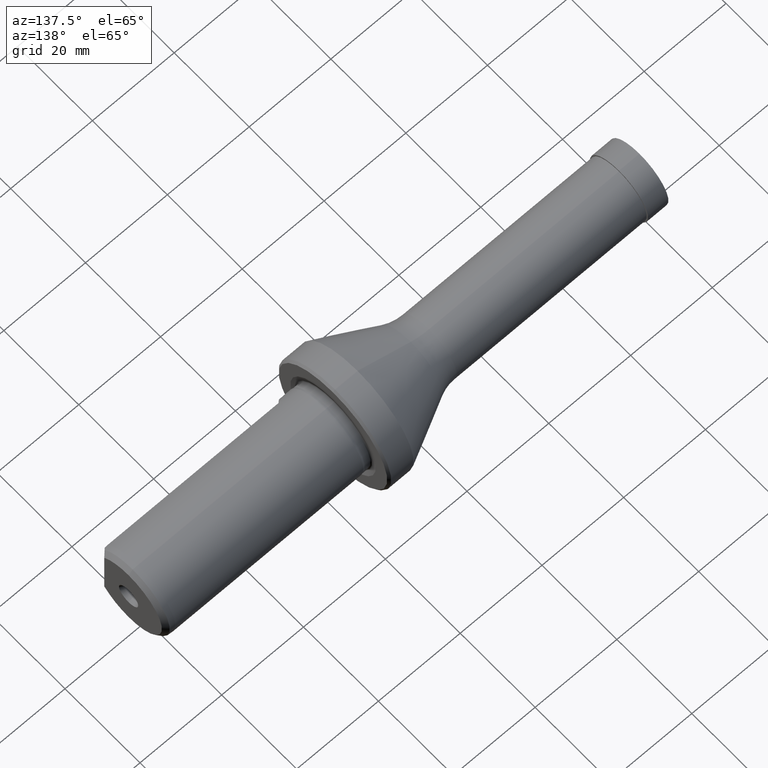
[diagram: clean part render]
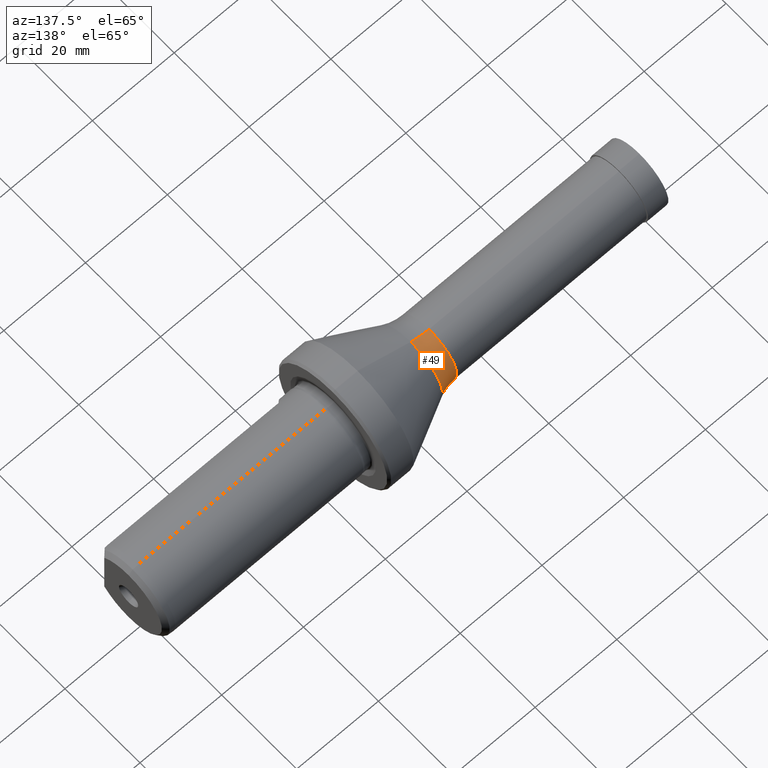
[diagram: same view with one face highlighted and labeled with its STEP entity id]
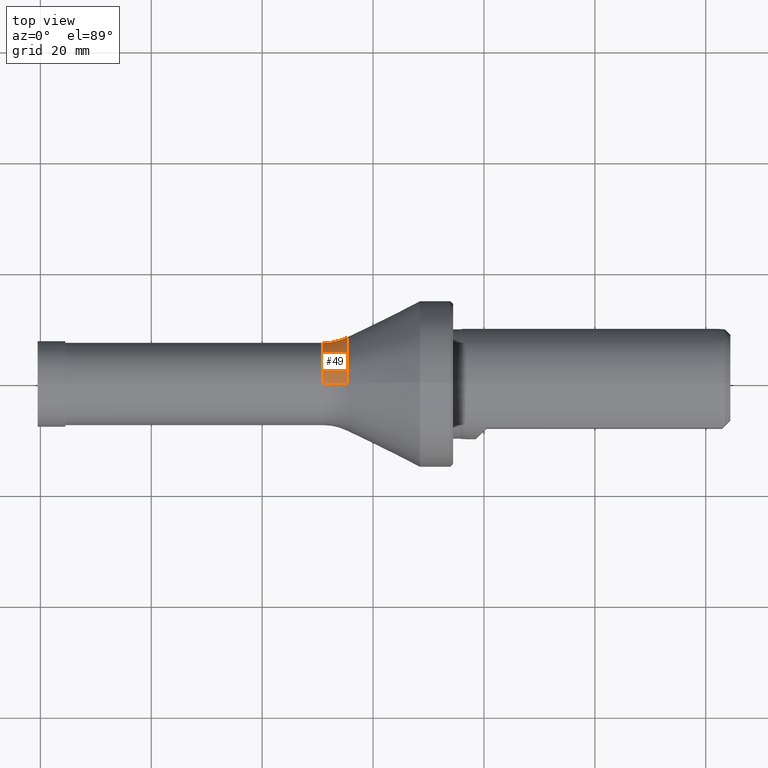
[diagram: same view with one face highlighted and labeled with its STEP entity id]
A machine part, auxiliary view. The second image highlights one B-rep face of the part: STEP entity #49.
A second angle (top view) of the same face is appended — the face is thin or edge-on in the first view.
In plain terms, the highlighted toroidal blend (fillet) surface has major radius 17.45 mm and minor (blend) radius 10 mm.
Its self-contained STEP definition (entity closure, byte-faithful):
#26 = VERTEX_POINT ( 'NONE', #283 ) ;
#47 = VERTEX_POINT ( 'NONE', #472 ) ;
#49 = ADVANCED_FACE ( 'NONE', ( #1224 ), #590, .F. ) ;
#71 = ORIENTED_EDGE ( 'NONE', *, *, #646, .F. ) ;
#106 = ORIENTED_EDGE ( 'NONE', *, *, #450, .T. ) ;
#117 = CARTESIAN_POINT ( 'NONE',  ( 55.43554605212926100, 0.0000000000000000000, 0.0000000000000000000 ) ) ;
#176 = DIRECTION ( 'NONE',  ( -1.000000000000000000, -0.0000000000000000000, -0.0000000000000000000 ) ) ;
#216 = CIRCLE ( 'NONE', #997, 10.00000000000000700 ) ;
#279 = DIRECTION ( 'NONE',  ( 0.0000000000000000000, 0.0000000000000000000, 1.000000000000000000 ) ) ;
#283 = CARTESIAN_POINT ( 'NONE',  ( 50.96900000000000100, 0.0000000000000000000, 7.450000000000000200 ) ) ;
#303 = AXIS2_PLACEMENT_3D ( 'NONE', #117, #671, #863 ) ;
#313 = DIRECTION ( 'NONE',  ( 0.0000000000000000000, -1.224646799147353500E-016, 1.000000000000000000 ) ) ;
#332 = DIRECTION ( 'NONE',  ( 0.0000000000000000000, -1.000000000000000000, 0.0000000000000000000 ) ) ;
#344 = AXIS2_PLACEMENT_3D ( 'NONE', #869, #970, #313 ) ;
#398 = CARTESIAN_POINT ( 'NONE',  ( 50.96900000000000100, 9.123618653647781200E-016, -7.450000000000000200 ) ) ;
#412 = CIRCLE ( 'NONE', #303, 8.502935321335348500 ) ;
#418 = CARTESIAN_POINT ( 'NONE',  ( 50.96900000000000100, 0.0000000000000000000, 17.44999999999999900 ) ) ;
#421 = EDGE_LOOP ( 'NONE', ( #71, #573, #641, #106 ) ) ;
#450 = EDGE_CURVE ( 'NONE', #47, #1180, #412, .T. ) ;
#472 = CARTESIAN_POINT ( 'NONE',  ( 55.43554605212926100, 0.0000000000000000000, 8.502935321335346700 ) ) ;
#474 = DIRECTION ( 'NONE',  ( -1.000000000000000000, -0.0000000000000000000, -0.0000000000000000000 ) ) ;
#573 = ORIENTED_EDGE ( 'NONE', *, *, #944, .F. ) ;
#590 = TOROIDAL_SURFACE ( 'NONE', #1119, 17.44999999999999900, 10.00000000000000700 ) ;
#602 = EDGE_CURVE ( 'NONE', #26, #47, #216, .T. ) ;
#636 = CIRCLE ( 'NONE', #344, 10.00000000000000700 ) ;
#641 = ORIENTED_EDGE ( 'NONE', *, *, #602, .T. ) ;
#646 = EDGE_CURVE ( 'NONE', #1136, #1180, #636, .T. ) ;
#650 = AXIS2_PLACEMENT_3D ( 'NONE', #930, #176, #279 ) ;
#671 = DIRECTION ( 'NONE',  ( -1.000000000000000000, -0.0000000000000000000, -0.0000000000000000000 ) ) ;
#863 = DIRECTION ( 'NONE',  ( 0.0000000000000000000, 0.0000000000000000000, 1.000000000000000000 ) ) ;
#869 = CARTESIAN_POINT ( 'NONE',  ( 50.96900000000000100, 2.137008664512131600E-015, -17.44999999999999900 ) ) ;
#881 = DIRECTION ( 'NONE',  ( 0.0000000000000000000, 0.0000000000000000000, -1.000000000000000000 ) ) ;
#930 = CARTESIAN_POINT ( 'NONE',  ( 50.96900000000000100, 0.0000000000000000000, 0.0000000000000000000 ) ) ;
#944 = EDGE_CURVE ( 'NONE', #26, #1136, #1150, .T. ) ;
#970 = DIRECTION ( 'NONE',  ( -0.0000000000000000000, 1.000000000000000000, 1.224646799147353200E-016 ) ) ;
#997 = AXIS2_PLACEMENT_3D ( 'NONE', #418, #332, #881 ) ;
#1048 = DIRECTION ( 'NONE',  ( 0.0000000000000000000, 0.0000000000000000000, 1.000000000000000000 ) ) ;
#1053 = CARTESIAN_POINT ( 'NONE',  ( 55.43554605212926100, 1.041309252463030300E-015, -8.502935321335346700 ) ) ;
#1119 = AXIS2_PLACEMENT_3D ( 'NONE', #1144, #474, #1048 ) ;
#1136 = VERTEX_POINT ( 'NONE', #398 ) ;
#1144 = CARTESIAN_POINT ( 'NONE',  ( 50.96900000000000100, 0.0000000000000000000, 0.0000000000000000000 ) ) ;
#1150 = CIRCLE ( 'NONE', #650, 7.450000000000000200 ) ;
#1180 = VERTEX_POINT ( 'NONE', #1053 ) ;
#1224 = FACE_OUTER_BOUND ( 'NONE', #421, .T. ) ;